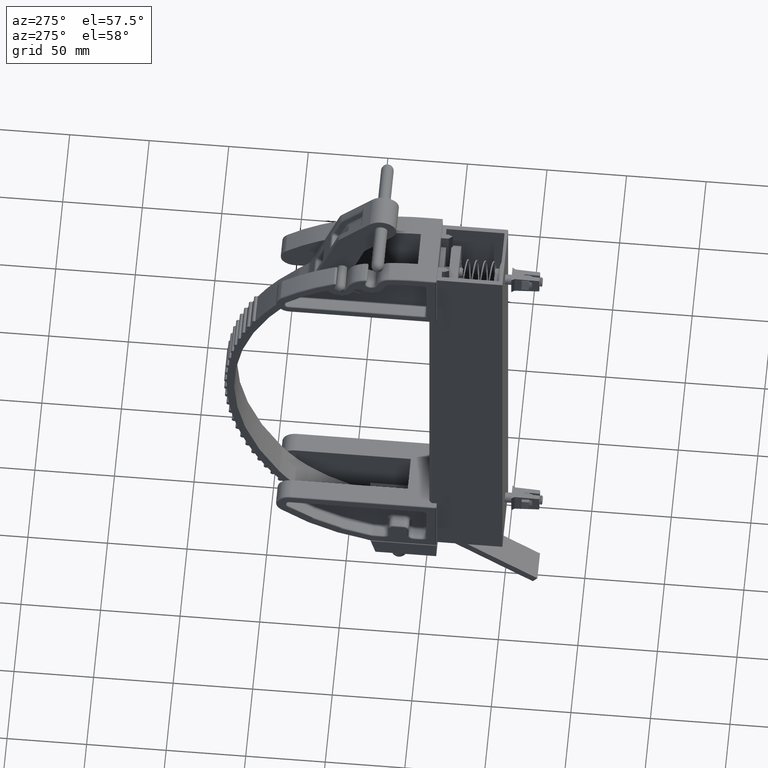
[diagram: clean part render]
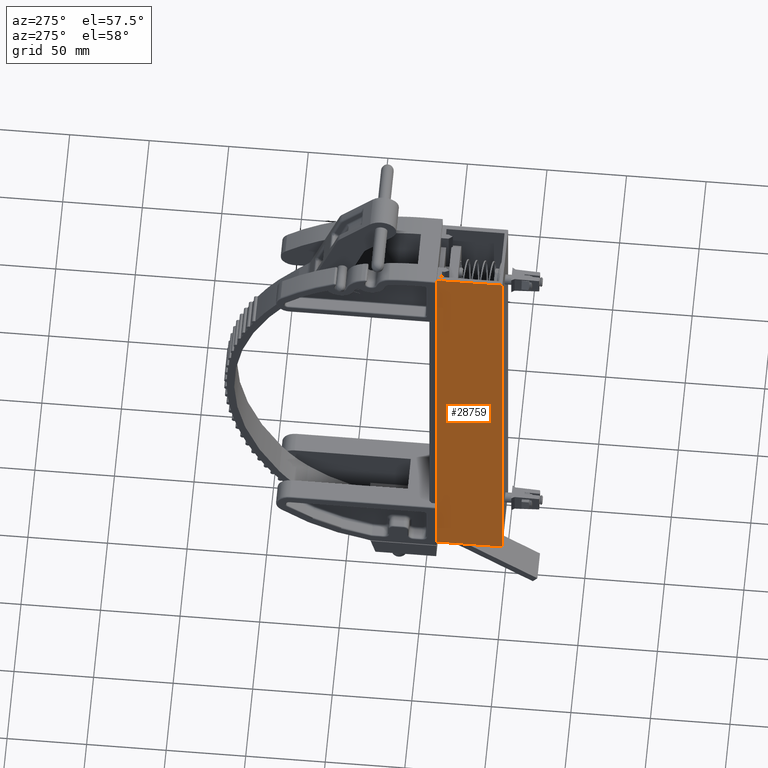
[diagram: same view with one face highlighted and labeled with its STEP entity id]
A machine part, auxiliary view. The second image highlights one B-rep face of the part: STEP entity #28759.
In plain terms, the highlighted planar face has unit normal (-1, 0, 0).
Its self-contained STEP definition (entity closure, byte-faithful):
#588 = CARTESIAN_POINT ( 'NONE',  ( -0.8125000000000000000, 0.0000000000000000000, -6.000000000000000900 ) ) ;
#1902 = CARTESIAN_POINT ( 'NONE',  ( -0.8125000000000000000, 1.625000000000000200, 6.000000000000000900 ) ) ;
#2261 = CARTESIAN_POINT ( 'NONE',  ( -0.8125000000000000000, 0.0000000000000000000, 6.000000000000000900 ) ) ;
#3168 = CARTESIAN_POINT ( 'NONE',  ( -0.8125000000000000000, 0.0000000000000000000, 6.000000000000000900 ) ) ;
#4355 = LINE ( 'NONE', #8124, #12412 ) ;
#6589 = ORIENTED_EDGE ( 'NONE', *, *, #15759, .T. ) ;
#8124 = CARTESIAN_POINT ( 'NONE',  ( -0.8125000000000000000, 0.0000000000000000000, -6.000000000000000900 ) ) ;
#8811 = VERTEX_POINT ( 'NONE', #36406 ) ;
#11155 = DIRECTION ( 'NONE',  ( 0.0000000000000000000, 1.000000000000000000, 0.0000000000000000000 ) ) ;
#11384 = PLANE ( 'NONE',  #25594 ) ;
#11587 = EDGE_CURVE ( 'NONE', #22425, #21517, #24755, .T. ) ;
#12412 = VECTOR ( 'NONE', #11155, 39.37007874015748100 ) ;
#14457 = DIRECTION ( 'NONE',  ( -1.000000000000000000, 0.0000000000000000000, 0.0000000000000000000 ) ) ;
#15759 = EDGE_CURVE ( 'NONE', #22425, #35411, #33851, .T. ) ;
#15932 = FACE_OUTER_BOUND ( 'NONE', #17236, .T. ) ;
#17236 = EDGE_LOOP ( 'NONE', ( #31801, #27239, #6589, #18414 ) ) ;
#18414 = ORIENTED_EDGE ( 'NONE', *, *, #33429, .T. ) ;
#20972 = VECTOR ( 'NONE', #26275, 39.37007874015748100 ) ;
#21301 = DIRECTION ( 'NONE',  ( 0.0000000000000000000, 1.000000000000000000, 0.0000000000000000000 ) ) ;
#21517 = VERTEX_POINT ( 'NONE', #588 ) ;
#22330 = CARTESIAN_POINT ( 'NONE',  ( -0.8125000000000000000, 0.0000000000000000000, 6.000000000000000900 ) ) ;
#22425 = VERTEX_POINT ( 'NONE', #22330 ) ;
#22637 = EDGE_CURVE ( 'NONE', #21517, #8811, #4355, .T. ) ;
#23790 = VECTOR ( 'NONE', #27027, 39.37007874015748100 ) ;
#24755 = LINE ( 'NONE', #33098, #23790 ) ;
#24869 = VECTOR ( 'NONE', #21301, 39.37007874015748100 ) ;
#25594 = AXIS2_PLACEMENT_3D ( 'NONE', #2261, #14457, #35612 ) ;
#26275 = DIRECTION ( 'NONE',  ( -0.0000000000000000000, -0.0000000000000000000, -1.000000000000000000 ) ) ;
#26933 = CARTESIAN_POINT ( 'NONE',  ( -0.8125000000000000000, 1.625000000000000200, 6.000000000000000900 ) ) ;
#27027 = DIRECTION ( 'NONE',  ( -0.0000000000000000000, -0.0000000000000000000, -1.000000000000000000 ) ) ;
#27239 = ORIENTED_EDGE ( 'NONE', *, *, #11587, .F. ) ;
#28759 = ADVANCED_FACE ( 'NONE', ( #15932 ), #11384, .T. ) ;
#31801 = ORIENTED_EDGE ( 'NONE', *, *, #22637, .F. ) ;
#33098 = CARTESIAN_POINT ( 'NONE',  ( -0.8125000000000000000, 0.0000000000000000000, 6.000000000000000900 ) ) ;
#33429 = EDGE_CURVE ( 'NONE', #35411, #8811, #37106, .T. ) ;
#33851 = LINE ( 'NONE', #3168, #24869 ) ;
#35411 = VERTEX_POINT ( 'NONE', #26933 ) ;
#35612 = DIRECTION ( 'NONE',  ( 0.0000000000000000000, 0.0000000000000000000, 1.000000000000000000 ) ) ;
#36406 = CARTESIAN_POINT ( 'NONE',  ( -0.8125000000000000000, 1.625000000000000200, -6.000000000000000900 ) ) ;
#37106 = LINE ( 'NONE', #1902, #20972 ) ;